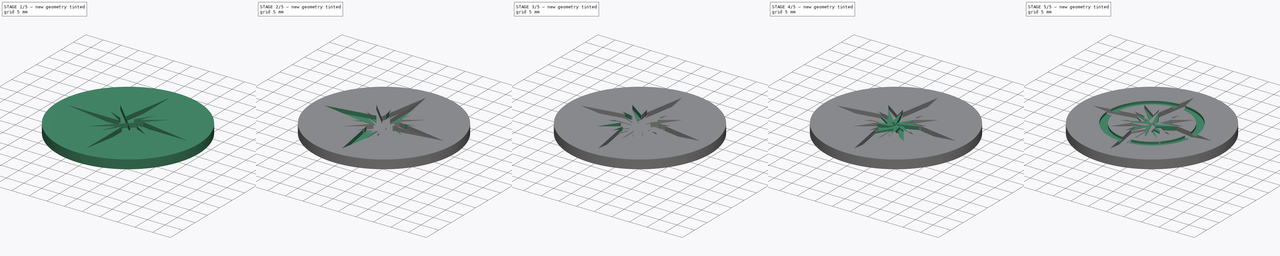
[diagram: build sequence overview — one tinted view per stage of 5, left to right]
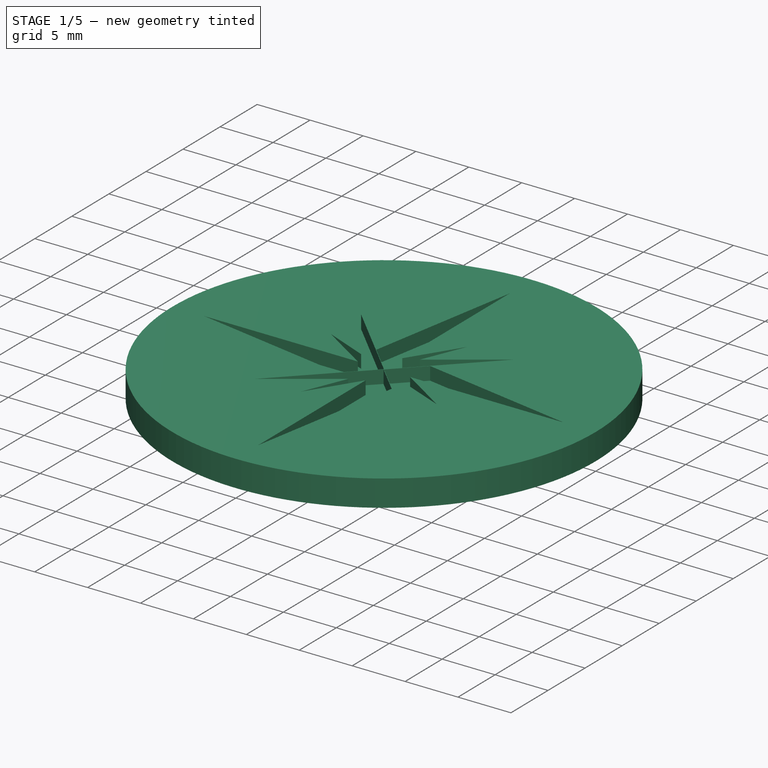
[diagram: stage 1 of 5 — iso view after this stage's code; geometry added in this stage tinted green]
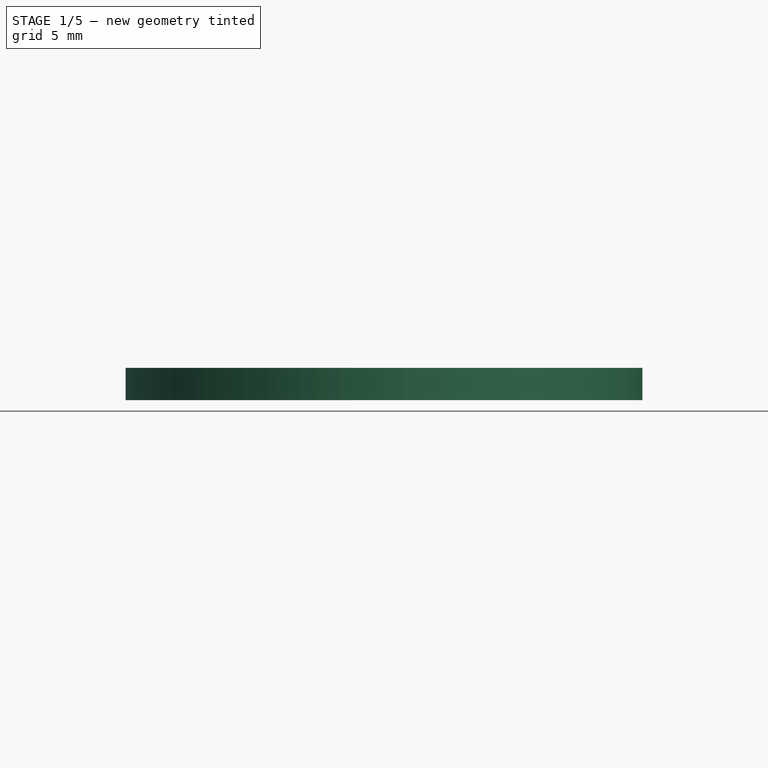
[diagram: stage 1 of 5 — front view after this stage's code; geometry added in this stage tinted green]
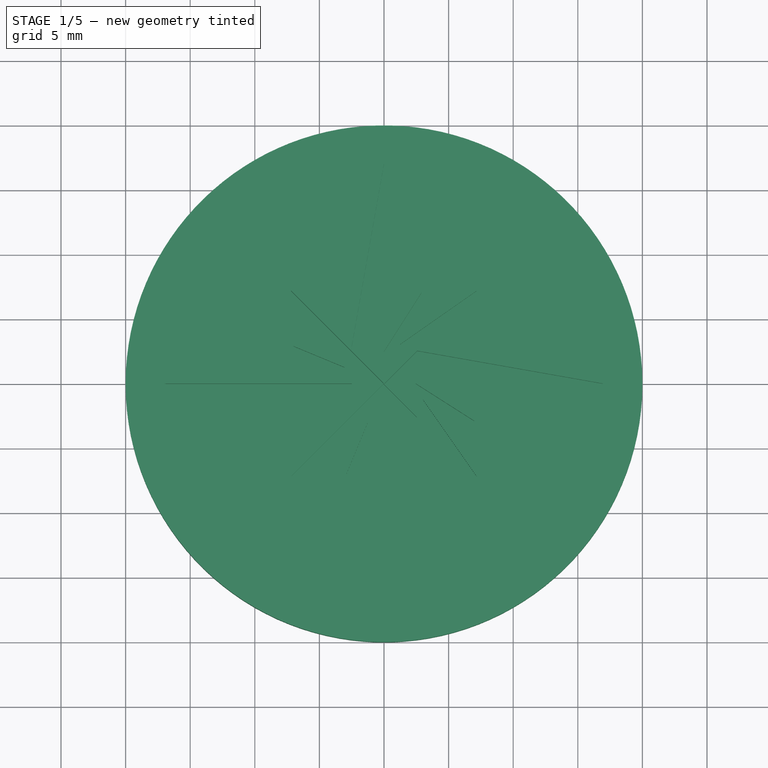
[diagram: stage 1 of 5 — top view after this stage's code; geometry added in this stage tinted green]
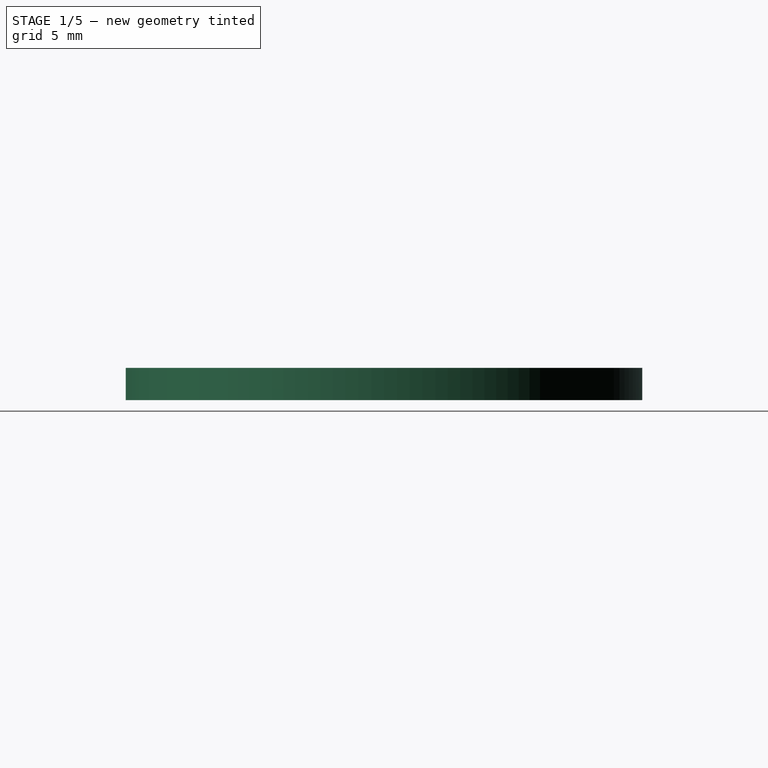
[diagram: stage 1 of 5 — right view after this stage's code; geometry added in this stage tinted green]
FCSTD DOCUMENT  (FreeCAD 0.20R29603 (Git))
Label: compass-rose-74992
License: All rights reserved
LicenseURL: http://en.wikipedia.org/wiki/All_rights_reserved
objects: Part::Feature×34, Sketcher::SketchObject×19, PartDesign::Pocket×11, PartDesign::Pad×7, App::DocumentObjectGroup×6, Part::FeaturePython×4, PartDesign::Plane×2, App::TextDocument×1, Spreadsheet::Sheet×1, App::Part×1, PartDesign::Body×1
note: 96 computed .brp shape members not serialized (recipe doc carries the construction recipe); baked Part::Feature solids carry a one-line shape summary decoded from their .brp

FEATURE [App::TextDocument] Text_document  label="Text document"
  Text = https://commons.wikimedia.org/wiki/File:Kopimi_k.svg
FEATURE [Spreadsheet::Sheet] Spreadsheet
  cells = A2=Vector X center; B2=svec_x; C2(dim_svec_x)==dim_vec_x * dim_svg_scale; A3=Vector Y center; B3=svec_y; C3(dim_svec_y)==dim_vec_y * dim_svg_scale; A4=Circle radius; B4=circle_r; C4(dim_circle_r)==20 mm; A5=Coin height; B5=coin_h; C5(dim_coin_h)==2.5 mm; D5==2.5 mm; A6=Engrave depth; B6=engrave_h; C6(dim_engrave_h)==dim_coin_h / 2; D6==1.25 mm; A7=SVG scale; B7=svg_scale; C7(dim_svg_scale)=0.3; A8=Vector X center; B8=vec_x; C8(dim_vec_x)==-56.63 mm; D8==dim_vec_x * dim_svg_scale; A9=Vector Y center; B9=vec_y; C9(dim_vec_y)==56.63 mm; D9==dim_vec_y * dim_svg_scale; A10=Star 1 engrave depth; B10=s1_h1; C10(dim_s1_h1)==dim_engrave_h; A11=Star 1 engrave depth 2; B11=s1_h2; C11(dim_s1_h2)==dim_engrave_h * 7 / 8; C12(dim_s2_h1)==dim_engrave_h * 0.75; C13(dim_s2_h2)==dim_engrave_h * 5 / 8; C14(dim_s3_h1)==dim_engrave_h * 0.5; C15(dim_s3_h2)==dim_engrave_h * 3 / 8; C16(dim_s4_h1)==dim_engrave_h * 0.25; A17=Star 4 engrage depth 2; C17(dim_s4_h2)==dim_engrave_h / 8; A18=Star 4 rise 2; B18=s4_r2; C18(dim_s4_r2)==dim_engrave_h - dim_s4_h2; C19(dim_s4_r1)==dim_engrave_h - dim_s4_h1; C20(dim_s3_r2)==dim_engrave_h - dim_s3_h2; C21(dim_s3_r1)==dim_engrave_h - dim_s3_h1; C22(dim_s2_r2)==dim_engrave_h - dim_s2_h2; C23(dim_s2_r1)==dim_engrave_h - dim_s2_h1
FEATURE [PartDesign::Plane] DatumPlane  label="BaseXYDatumPlane"
  Length = 60
  MapMode = 5
  ResizeMode = 0
  Support = -> [XY_Plane]
  Width = 60
FEATURE [Sketcher::SketchObject] Sketch001  label="CircleSketch"
  FullyConstrained = true
  MapMode = 5
  Support = -> [DatumPlane]
  expr: Constraints[1] = Spreadsheet.dim_circle_r
  sketch-geometry (1):
    g0: Circle CenterX=0 CenterY=0 CenterZ=0 NormalX=0 NormalY=0 NormalZ=1 AngleXU=0 Radius=20
  constraints (2):
    c: Coincident(g0,g-1)
    c: Radius(g0) = 20
FEATURE [PartDesign::Pad] Pad  label="CirclePad"
  Direction = (0,0,1)
  Length = 2.5
  Length2 = 10
  Profile = -> Sketch001
  ReferenceAxis = -> Sketch001 [N_Axis]
  Reversed = true
  Type = 0
  expr: Length = Spreadsheet.dim_coin_h
FEATURE [Part::Feature] path4489_0
  shape: bbox 13.23 x 24.91 x 2e-07 mm, 1 faces, 0 solids (baked)
FEATURE [Part::Feature] path4489_4_1
  shape: bbox 13.23 x 24.91 x 2e-07 mm, 1 faces, 0 solids (baked)
FEATURE [Part::Feature] path4489_9_8
  shape: bbox 13.23 x 24.91 x 2e-07 mm, 1 faces, 0 solids (baked)
FEATURE [Part::Feature] path4489_4_0_5
  shape: bbox 13.23 x 24.91 x 2e-07 mm, 1 faces, 0 solids (baked)
FEATURE [Part::Feature] path4489_8_3
  shape: bbox 24.91 x 13.23 x 2e-07 mm, 1 faces, 0 solids (baked)
FEATURE [Part::Feature] path4489_4_00_8
  shape: bbox 24.91 x 13.23 x 2e-07 mm, 1 faces, 0 solids (baked)
FEATURE [Part::Feature] path4489_9_3_3
  shape: bbox 24.91 x 13.23 x 2e-07 mm, 1 faces, 0 solids (baked)
FEATURE [Part::Feature] path4489_4_0_2_2
  shape: bbox 24.91 x 13.23 x 2e-07 mm, 1 faces, 0 solids (baked)
FEATURE [App::DocumentObjectGroup] Group002  label="Star4Group"
  Group = -> [path4489_0,path4489_4_1,path4489_9_8,path4489_4_0_5,path4489_8_3,path4489_4_00_8,path4489_9_3_3,path4489_4_0_2_2]
FEATURE [Part::Feature] path4489_0_8
  shape: bbox 24.91 x 13.23 x 2e-07 mm, 1 faces, 0 solids (baked)
FEATURE [Part::Feature] path4489_4_1_9
  shape: bbox 24.91 x 13.23 x 2e-07 mm, 1 faces, 0 solids (baked)
FEATURE [Part::Feature] path4489_9_8_2
  shape: bbox 24.91 x 13.23 x 2e-07 mm, 1 faces, 0 solids (baked)
FEATURE [Part::Feature] path4489_4_0_5_2
  shape: bbox 24.91 x 13.23 x 2e-07 mm, 1 faces, 0 solids (baked)
FEATURE [Part::Feature] path4489_8_3_1
  shape: bbox 13.23 x 24.91 x 2e-07 mm, 1 faces, 0 solids (baked)
FEATURE [Part::Feature] path4489_4_00_8_9
  shape: bbox 13.23 x 24.91 x 2e-07 mm, 1 faces, 0 solids (baked)
FEATURE [Part::Feature] path4489_9_3_3_3
  shape: bbox 13.23 x 24.91 x 2e-07 mm, 1 faces, 0 solids (baked)
FEATURE [Part::Feature] path4489_4_0_2_2_5
  shape: bbox 13.23 x 24.91 x 2e-07 mm, 1 faces, 0 solids (baked)
FEATURE [Part::Feature] path4688_3
  shape: bbox 91.92 x 91.92 x 2e-07 mm, 1 faces, 0 solids (baked)
FEATURE [Part::Feature] path4688_3001
  shape: bbox 75.92 x 75.92 x 2e-07 mm, 1 faces, 0 solids (baked)
FEATURE [App::DocumentObjectGroup] Group001  label="CircleGroup"
  Group = -> [path4688_3,path4688_3001]
FEATURE [Part::Feature] path4489_6
  shape: bbox 23.94 x 23.94 x 2e-07 mm, 1 faces, 0 solids (baked)
FEATURE [Part::Feature] path4489_4_9
  shape: bbox 23.94 x 23.94 x 2e-07 mm, 1 faces, 0 solids (baked)
FEATURE [Part::Feature] path4489_9_2
  shape: bbox 23.94 x 23.94 x 2e-07 mm, 1 faces, 0 solids (baked)
FEATURE [Part::Feature] path4489_4_0_26
  shape: bbox 23.94 x 23.94 x 2e-07 mm, 1 faces, 0 solids (baked)
FEATURE [Part::Feature] path4489_8_0
  shape: bbox 23.94 x 23.94 x 2e-07 mm, 1 faces, 0 solids (baked)
FEATURE [Part::Feature] path4489_4_00_4
  shape: bbox 23.94 x 23.94 x 2e-07 mm, 1 faces, 0 solids (baked)
FEATURE [Part::Feature] path4489_9_3_0
  shape: bbox 23.94 x 23.94 x 2e-07 mm, 1 faces, 0 solids (baked)
FEATURE [Part::Feature] path4489_4_0_2_6
  shape: bbox 23.94 x 23.94 x 2e-07 mm, 1 faces, 0 solids (baked)
FEATURE [Part::Feature] path4489
  shape: bbox 8.467 x 56.44 x 2e-07 mm, 1 faces, 0 solids (baked)
FEATURE [Part::Feature] path4489_4
  shape: bbox 8.467 x 56.44 x 2e-07 mm, 1 faces, 0 solids (baked)
FEATURE [Part::Feature] path4489_9
  shape: bbox 8.467 x 56.44 x 2e-07 mm, 1 faces, 0 solids (baked)
FEATURE [Part::Feature] path4489_4_0
  shape: bbox 8.467 x 56.44 x 2e-07 mm, 1 faces, 0 solids (baked)
FEATURE [Part::Feature] path4489_8
  shape: bbox 56.44 x 8.467 x 2e-07 mm, 1 faces, 0 solids (baked)
FEATURE [Part::Feature] path4489_4_00
  shape: bbox 56.44 x 8.467 x 2e-07 mm, 1 faces, 0 solids (baked)
FEATURE [Part::Feature] path4489_9_3
  shape: bbox 56.44 x 8.467 x 2e-07 mm, 1 faces, 0 solids (baked)
FEATURE [Part::Feature] path4489_4_0_2
  shape: bbox 56.44 x 8.467 x 2e-07 mm, 1 faces, 0 solids (baked)
FEATURE [App::DocumentObjectGroup] Group  label="Star1Group"
  Group = -> [path4489,path4489_4,path4489_9,path4489_4_0,path4489_8,path4489_4_00,path4489_9_3,path4489_4_0_2]
FEATURE [App::DocumentObjectGroup] Group003  label="Star3Group"
  Group = -> [path4489_0_8,path4489_4_1_9,path4489_9_8_2,path4489_4_0_5_2,path4489_8_3_1,path4489_4_00_8_9,path4489_9_3_3_3,path4489_4_0_2_2_5]
FEATURE [App::DocumentObjectGroup] Group004  label="Star2Group"
  Group = -> [path4489_6,path4489_4_9,path4489_9_2,path4489_4_0_26,path4489_8_0,path4489_4_00_4,path4489_9_3_0,path4489_4_0_2_6]
FEATURE [Sketcher::SketchObject] Sketch  label="Star11Sketch"
  FullyConstrained = false
  MapMode = 5
  Support = -> [DatumPlane]
  sketch-geometry (12):
    g0: BSplineCurve PolesCount=2 KnotsCount=2 Degree=1 IsPeriodic=0
    g1: BSplineCurve PolesCount=2 KnotsCount=2 Degree=1 IsPeriodic=0
    g2: BSplineCurve PolesCount=2 KnotsCount=2 Degree=1 IsPeriodic=0
    g3: BSplineCurve PolesCount=2 KnotsCount=2 Degree=1 IsPeriodic=0
    g4: BSplineCurve PolesCount=2 KnotsCount=2 Degree=1 IsPeriodic=0
    g5: BSplineCurve PolesCount=2 KnotsCount=2 Degree=1 IsPeriodic=0
    g6: BSplineCurve PolesCount=2 KnotsCount=2 Degree=1 IsPeriodic=0
    g7: BSplineCurve PolesCount=2 KnotsCount=2 Degree=1 IsPeriodic=0
    g8: BSplineCurve PolesCount=2 KnotsCount=2 Degree=1 IsPeriodic=0
    g9: BSplineCurve PolesCount=2 KnotsCount=2 Degree=1 IsPeriodic=0
    g10: BSplineCurve PolesCount=2 KnotsCount=2 Degree=1 IsPeriodic=0
    g11: BSplineCurve PolesCount=2 KnotsCount=2 Degree=1 IsPeriodic=0
  constraints (12):
    c: Coincident(g0,g1)
    c: Coincident(g1,g2)
    c: Coincident(g2,g0)
    c: Coincident(g3,g4)
    c: Coincident(g4,g5)
    c: Coincident(g5,g3)
    c: Coincident(g6,g7)
    c: Coincident(g7,g8)
    c: Coincident(g8,g6)
    c: Coincident(g9,g10)
    c: Coincident(g10,g11)
    c: Coincident(g11,g9)
FEATURE [PartDesign::Pocket] Pocket  label="Star11Pocket"
  BaseFeature = -> Pad
  Direction = (0,0,-1)
  Length = 1.25
  Length2 = 5
  Profile = -> Sketch
  ReferenceAxis = -> Sketch [N_Axis]
  Type = 0
  expr: Length = Spreadsheet.dim_engrave_h
FEATURE [Sketcher::SketchObject] Sketch002
  FullyConstrained = false
  MapMode = 5
  Support = -> [DatumPlane]
  sketch-geometry (12):
    g0: BSplineCurve PolesCount=2 KnotsCount=2 Degree=1 IsPeriodic=0
    g1: BSplineCurve PolesCount=2 KnotsCount=2 Degree=1 IsPeriodic=0
    g2: BSplineCurve PolesCount=2 KnotsCount=2 Degree=1 IsPeriodic=0
    g3: BSplineCurve PolesCount=2 KnotsCount=2 Degree=1 IsPeriodic=0
    g4: BSplineCurve PolesCount=2 KnotsCount=2 Degree=1 IsPeriodic=0
    g5: BSplineCurve PolesCount=2 KnotsCount=2 Degree=1 IsPeriodic=0
    g6: BSplineCurve PolesCount=2 KnotsCount=2 Degree=1 IsPeriodic=0
    g7: BSplineCurve PolesCount=2 KnotsCount=2 Degree=1 IsPeriodic=0
    g8: BSplineCurve PolesCount=2 KnotsCount=2 Degree=1 IsPeriodic=0
    g9: BSplineCurve PolesCount=2 KnotsCount=2 Degree=1 IsPeriodic=0
    g10: BSplineCurve PolesCount=2 KnotsCount=2 Degree=1 IsPeriodic=0
    g11: BSplineCurve PolesCount=2 KnotsCount=2 Degree=1 IsPeriodic=0
  constraints (12):
    c: Coincident(g0,g1)
    c: Coincident(g1,g2)
    c: Coincident(g2,g0)
    c: Coincident(g3,g4)
    c: Coincident(g4,g5)
    c: Coincident(g5,g3)
    c: Coincident(g6,g7)
    c: Coincident(g7,g8)
    c: Coincident(g8,g6)
    c: Coincident(g9,g10)
    c: Coincident(g10,g11)
    c: Coincident(g11,g9)
FEATURE [PartDesign::Pocket] Pocket001  label="Star21Pocket"
  BaseFeature = -> Pocket
  Direction = (0,0,-1)
  Length = 1.25
  Length2 = 5
  Profile = -> Sketch002
  ReferenceAxis = -> Sketch002 [N_Axis]
  Type = 0
  expr: Length = Spreadsheet.dim_engrave_h
FEATURE [Sketcher::SketchObject] Sketch003
  FullyConstrained = false
  MapMode = 5
  Support = -> [DatumPlane]
  sketch-geometry (12):
    g0: BSplineCurve PolesCount=2 KnotsCount=2 Degree=1 IsPeriodic=0
    g1: BSplineCurve PolesCount=2 KnotsCount=2 Degree=1 IsPeriodic=0
    g2: BSplineCurve PolesCount=2 KnotsCount=2 Degree=1 IsPeriodic=0
    g3: BSplineCurve PolesCount=2 KnotsCount=2 Degree=1 IsPeriodic=0
    g4: BSplineCurve PolesCount=2 KnotsCount=2 Degree=1 IsPeriodic=0
    g5: BSplineCurve PolesCount=2 KnotsCount=2 Degree=1 IsPeriodic=0
    g6: BSplineCurve PolesCount=2 KnotsCount=2 Degree=1 IsPeriodic=0
    g7: BSplineCurve PolesCount=2 KnotsCount=2 Degree=1 IsPeriodic=0
    g8: BSplineCurve PolesCount=2 KnotsCount=2 Degree=1 IsPeriodic=0
    g9: BSplineCurve PolesCount=2 KnotsCount=2 Degree=1 IsPeriodic=0
    g10: BSplineCurve PolesCount=2 KnotsCount=2 Degree=1 IsPeriodic=0
    g11: BSplineCurve PolesCount=2 KnotsCount=2 Degree=1 IsPeriodic=0
  constraints (12):
    c: Coincident(g0,g1)
    c: Coincident(g1,g2)
    c: Coincident(g2,g0)
    c: Coincident(g3,g4)
    c: Coincident(g4,g5)
    c: Coincident(g5,g3)
    c: Coincident(g6,g7)
    c: Coincident(g7,g8)
    c: Coincident(g8,g6)
    c: Coincident(g9,g10)
    c: Coincident(g10,g11)
    c: Coincident(g11,g9)
FEATURE [PartDesign::Pocket] Pocket002  label="Star31Pocket"
  BaseFeature = -> Pocket001
  Direction = (0,0,-1)
  Length = 1.25
  Length2 = 5
  Profile = -> Sketch003
  ReferenceAxis = -> Sketch003 [N_Axis]
  Type = 0
  expr: Length = Spreadsheet.dim_engrave_h
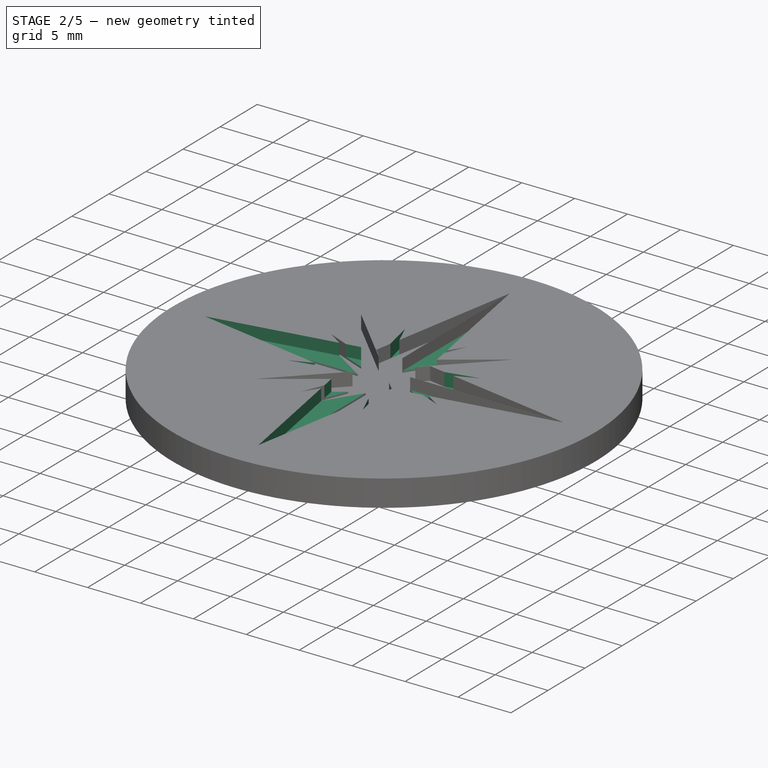
[diagram: stage 2 of 5 — iso view after this stage's code; geometry added in this stage tinted green]
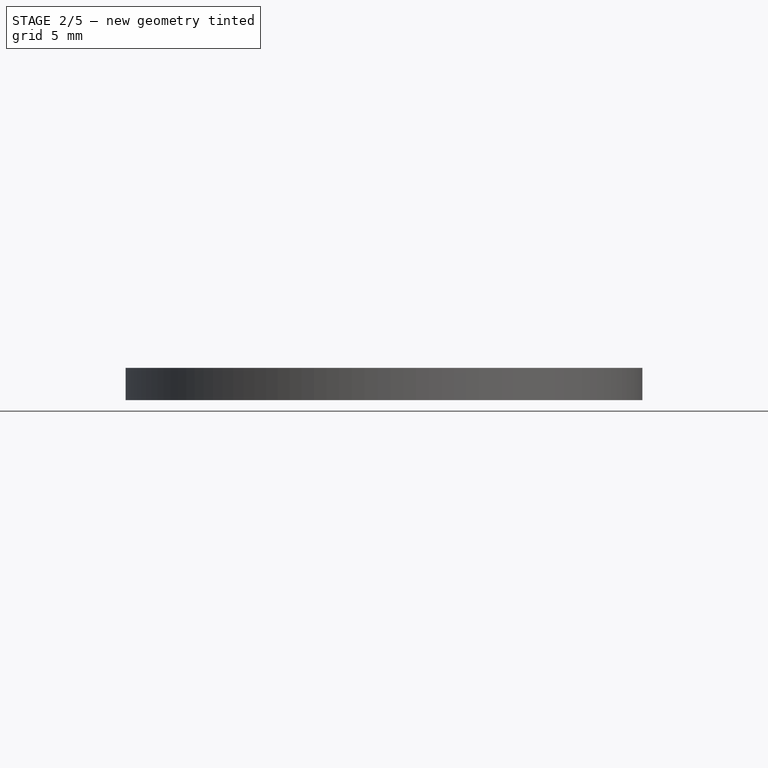
[diagram: stage 2 of 5 — front view after this stage's code; geometry added in this stage tinted green]
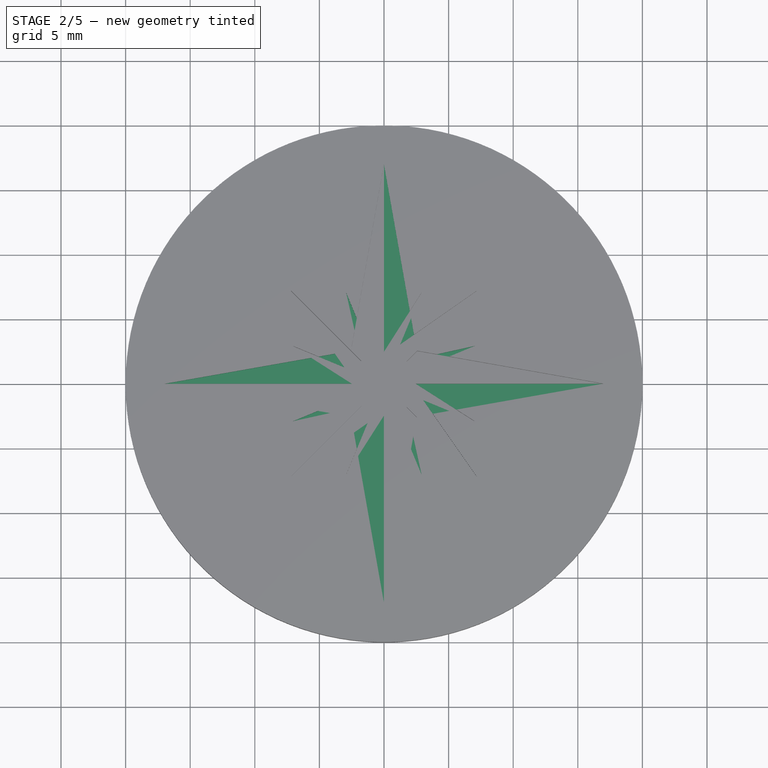
[diagram: stage 2 of 5 — top view after this stage's code; geometry added in this stage tinted green]
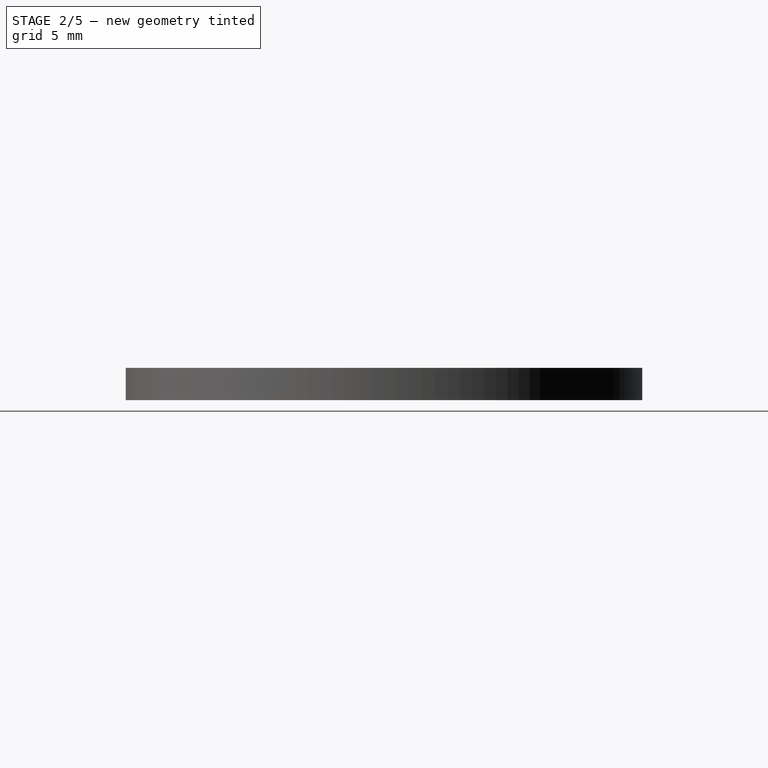
[diagram: stage 2 of 5 — right view after this stage's code; geometry added in this stage tinted green]
FEATURE [Sketcher::SketchObject] Sketch004
  FullyConstrained = false
  MapMode = 5
  Support = -> [DatumPlane]
  sketch-geometry (12):
    g0: BSplineCurve PolesCount=2 KnotsCount=2 Degree=1 IsPeriodic=0
    g1: BSplineCurve PolesCount=2 KnotsCount=2 Degree=1 IsPeriodic=0
    g2: BSplineCurve PolesCount=2 KnotsCount=2 Degree=1 IsPeriodic=0
    g3: BSplineCurve PolesCount=2 KnotsCount=2 Degree=1 IsPeriodic=0
    g4: BSplineCurve PolesCount=2 KnotsCount=2 Degree=1 IsPeriodic=0
    g5: BSplineCurve PolesCount=2 KnotsCount=2 Degree=1 IsPeriodic=0
    g6: BSplineCurve PolesCount=2 KnotsCount=2 Degree=1 IsPeriodic=0
    g7: BSplineCurve PolesCount=2 KnotsCount=2 Degree=1 IsPeriodic=0
    g8: BSplineCurve PolesCount=2 KnotsCount=2 Degree=1 IsPeriodic=0
    g9: BSplineCurve PolesCount=2 KnotsCount=2 Degree=1 IsPeriodic=0
    g10: BSplineCurve PolesCount=2 KnotsCount=2 Degree=1 IsPeriodic=0
    g11: BSplineCurve PolesCount=2 KnotsCount=2 Degree=1 IsPeriodic=0
  constraints (12):
    c: Coincident(g0,g1)
    c: Coincident(g1,g2)
    c: Coincident(g2,g0)
    c: Coincident(g3,g4)
    c: Coincident(g4,g5)
    c: Coincident(g5,g3)
    c: Coincident(g6,g7)
    c: Coincident(g7,g8)
    c: Coincident(g8,g6)
    c: Coincident(g9,g10)
    c: Coincident(g10,g11)
    c: Coincident(g11,g9)
FEATURE [PartDesign::Pocket] Pocket003  label="Star41Pocket"
  BaseFeature = -> Pocket002
  Direction = (0,0,-1)
  Length = 1.25
  Length2 = 5
  Profile = -> Sketch004
  ReferenceAxis = -> Sketch004 [N_Axis]
  Type = 0
  expr: Length = Spreadsheet.dim_engrave_h
FEATURE [Sketcher::SketchObject] Sketch005  label="CenterCircleSketch"
  FullyConstrained = true
  MapMode = 5
  Support = -> [DatumPlane]
  sketch-geometry (1):
    g0: Circle CenterX=0 CenterY=0 CenterZ=0 NormalX=0 NormalY=0 NormalZ=1 AngleXU=0 Radius=1
  constraints (2):
    c: Coincident(g0,g-1)
    c: Radius(g0) = 1
FEATURE [PartDesign::Pocket] Pocket004  label="CenterPocket"
  BaseFeature = -> Pocket003
  Direction = (0,0,-1)
  Length = 1.25
  Length2 = 5
  Profile = -> Sketch005
  ReferenceAxis = -> Sketch005 [N_Axis]
  Type = 0
  expr: Length = Spreadsheet.dim_engrave_h
FEATURE [App::Part] Part  label="SVGPart"
  Group = -> [path4489_4_0,path4489,path4489_9,path4489_4_00,path4489_4,path4489_9_3,path4489_4_0_2,path4489_8,Group,path4489_8_0,path4489_4_00_4,path4489_4_0_2_6,path4489_6,path4489_9_3_0,path4489_4_9,path4489_4_0_26,path4489_9_2,Group004,path4489_4_1_9,path4489_8_3_1,path4489_4_00_8_9,path4489_9_3_3_3,path4489_4_0_5_2,path4489_4_0_2_2_5,path4489_9_8_2,path4489_0_8,Group003,path4489_9_3_3,path4489_4_0_2_2,+10 more]
  Origin = -> Origin001
  Placement = pos=(-56.63,56.63,0) rot=(0,0,1;0rad)
FEATURE [Sketcher::SketchObject] Sketch006  label="CenterReferenceSketch"
  FullyConstrained = true
  MapMode = 5
  Support = -> [DatumPlane]
  expr: Constraints[22] = Spreadsheet.dim_svec_y
  expr: Constraints[27] = Spreadsheet.dim_svec_y
  expr: Constraints[35] = Spreadsheet.dim_svec_y
  expr: Constraints[40] = Spreadsheet.dim_svec_y
  sketch-geometry (25):
    g0: ArcOfCircle CenterX=0 CenterY=0 CenterZ=0 NormalX=0 NormalY=0 NormalZ=1 AngleXU=0 Radius=57 StartAngle=0 EndAngle=1.5708
    g1: ArcOfCircle CenterX=0 CenterY=0 CenterZ=0 NormalX=0 NormalY=0 NormalZ=1 AngleXU=0 Radius=57 StartAngle=1.5708 EndAngle=3.14159
    g2: ArcOfCircle CenterX=0 CenterY=0 CenterZ=0 NormalX=0 NormalY=0 NormalZ=1 AngleXU=0 Radius=57 StartAngle=4.71239 EndAngle=6.28319
    g3: LineSegment StartX=-16.989 StartY=0 StartZ=0 EndX=-57 EndY=0 EndZ=0
    g4: LineSegment StartX=0 StartY=16.989 StartZ=0 EndX=0 EndY=57 EndZ=0
    g5: LineSegment StartX=16.989 StartY=0 StartZ=0 EndX=57 EndY=0 EndZ=0
    g6: LineSegment StartX=0 StartY=-16.989 StartZ=0 EndX=0 EndY=-57 EndZ=0
    g7: LineSegment StartX=0 StartY=0 StartZ=0 EndX=-16.889 EndY=0 EndZ=0
    g8: LineSegment StartX=-16.889 StartY=0 StartZ=0 EndX=-16.989 EndY=0 EndZ=0
    g9: LineSegment StartX=0 StartY=0 StartZ=0 EndX=0 EndY=1 EndZ=0
    g10: LineSegment StartX=0 StartY=0 StartZ=0 EndX=0 EndY=-1 EndZ=0
    g11: LineSegment StartX=0 StartY=-1 StartZ=0 EndX=0 EndY=-16.989 EndZ=0
    g12: LineSegment StartX=0 StartY=0 StartZ=0 EndX=16.889 EndY=0 EndZ=0
    g13: LineSegment StartX=16.889 StartY=0 StartZ=0 EndX=16.989 EndY=0 EndZ=0
    g14: LineSegment StartX=0 StartY=1 StartZ=0 EndX=0 EndY=16.889 EndZ=0
    g15: LineSegment StartX=0 StartY=16.889 StartZ=0 EndX=0 EndY=16.989 EndZ=0
    g16: LineSegment StartX=0 StartY=16.889 StartZ=0 EndX=-0.707107 EndY=0.707107 EndZ=0
    g17: LineSegment StartX=0 StartY=16.889 StartZ=0 EndX=0.707107 EndY=0.707107 EndZ=0
    g18: LineSegment StartX=-0.707107 StartY=0.707107 StartZ=0 EndX=-16.889 EndY=0 EndZ=0
    g19: LineSegment StartX=-16.889 StartY=0 StartZ=0 EndX=-0.707107 EndY=-0.707107 EndZ=0
    g20: LineSegment StartX=0.707107 StartY=0.707107 StartZ=0 EndX=16.889 EndY=-1e-16 EndZ=0
    g21: LineSegment StartX=16.889 StartY=0 StartZ=0 EndX=0.707107 EndY=-0.707107 EndZ=0
    g22: LineSegment StartX=-0.707107 StartY=0.707107 StartZ=0 EndX=0 EndY=0 EndZ=0
    g23: ArcOfCircle CenterX=0 CenterY=0 CenterZ=0 NormalX=0 NormalY=0 NormalZ=1 AngleXU=0 Radius=1 StartAngle=5.49779 EndAngle=10.2102
    g24: LineSegment StartX=-0.707107 StartY=-0.707107 StartZ=0 EndX=0.707107 EndY=-0.707107 EndZ=0
  constraints (67):
    c: Coincident(g9,g-1)
    c: Coincident(g12,g9)
    c: Coincident(g0,g9)
    c: Coincident(g0,g4)
    c: Coincident(g0,g5)
    c: DistanceY(g9,g4) = 57
    c: Coincident(g10,g9)
    c: Coincident(g7,g9)
    c: Coincident(g1,g9)
    c: Coincident(g1,g4)
    c: Coincident(g1,g3)
    c: Coincident(g2,g9)
    c: Coincident(g2,g5)
    c: Coincident(g2,g6)
    c: Coincident(g8,g3)
    c: Horizontal(g3)
    c: Coincident(g15,g4)
    c: Vertical(g4)
    c: Coincident(g13,g5)
    c: Horizontal(g5)
    c: Coincident(g11,g6)
    c: Vertical(g6)
    c: DistanceY(g9,g15) = 16.989
    c: Coincident(g7,g8)
    c: Horizontal(g7)
    c: Horizontal(g8)
    c: DistanceX(g8,g8) = 0.1
    c: DistanceX(g3,g0) = 16.989
    c: Coincident(g9,g14)
    c: Vertical(g9)
    c: Coincident(g10,g11)
    c: Vertical(g10)
    c: Vertical(g11)
    c: Equal(g10,g9)
    c: DistanceY(g9,g9) = 1
    c: DistanceY(g6,g0) = 16.989
    c: Coincident(g12,g13)
    c: Horizontal(g12)
    c: Horizontal(g13)
    c: DistanceX(g13,g13) = 0.1
    c: DistanceX(g0,g5) = 16.989
    c: Coincident(g14,g15)
    c: Vertical(g14)
    c: Vertical(g15)
    c: DistanceY(g15,g15) = 0.1
    c: Coincident(g16,g14)
    c: Coincident(g17,g16)
    c: Coincident(g23,g0)
    c: Coincident(g18,g16)
    c: Coincident(g18,g7)
    c: Coincident(g19,g18)
    c: Coincident(g20,g17)
    c: Coincident(g20,g12)
    c: Coincident(g21,g20)
    c: Equal(g21,g20)
    c: Equal(g18,g19)
    c: Equal(g16,g17)
    c: Coincident(g22,g16)
    c: Coincident(g22,g0)
    c: Angle(g22,g7) = 0.785398
    c: PointOnObject(g9,g23)
    c: PointOnObject(g17,g23)
    c: PointOnObject(g16,g23)
    c: Coincident(g21,g23)
    c: Coincident(g19,g23)
    c: Coincident(g24,g19)
    c: Coincident(g24,g21)
FEATURE [Part::FeaturePython] Clone  label="path4489_010"  # Draft clone (typed FeaturePython)
  AttacherType = Attacher::AttachEngine3D
  Fuse = false
  Objects = -> [path4489_4,path4489_4_0,path4489_4_00,path4489_4_0_2]
  Placement = pos=(-16.989,16.989,0) rot=(0,0,1;0rad)
  Scale = (0.3,0.3,0.3)
  expr: .Placement.Base.x = Spreadsheet.dim_svec_x
  expr: .Placement.Base.y = Spreadsheet.dim_svec_y
FEATURE [Part::FeaturePython] Clone001  label="path4489_4_001"  # Draft clone (typed FeaturePython)
  AttacherType = Attacher::AttachEngine3D
  Fuse = false
  Objects = -> [path4489_4_9,path4489_4_0_26,path4489_4_00_4,path4489_4_0_2_6]
  Placement = pos=(-16.989,16.989,0) rot=(0,0,1;0rad)
  Scale = (0.3,0.3,0.3)
  expr: .Placement.Base.x = Spreadsheet.dim_svec_x
  expr: .Placement.Base.y = Spreadsheet.dim_svec_y
FEATURE [Part::FeaturePython] Clone002  label="path4489_4_1_010"  # Draft clone (typed FeaturePython)
  AttacherType = Attacher::AttachEngine3D
  Fuse = false
  Objects = -> [path4489_4_1_9,path4489_4_0_5_2,path4489_4_00_8_9,path4489_4_0_2_2_5]
  Placement = pos=(-16.989,16.989,0) rot=(0,0,1;0rad)
  Scale = (0.3,0.3,0.3)
  expr: .Placement.Base.x = Spreadsheet.dim_svec_x
  expr: .Placement.Base.y = Spreadsheet.dim_svec_y
FEATURE [Part::FeaturePython] Clone003  label="path4489_4_002"  # Draft clone (typed FeaturePython)
  AttacherType = Attacher::AttachEngine3D
  Fuse = false
  Objects = -> [path4489_4_1,path4489_4_0_5,path4489_4_00_8,path4489_4_0_2_2]
  Placement = pos=(-16.989,16.989,0) rot=(0,0,1;0rad)
  Scale = (0.3,0.3,0.3)
  expr: .Placement.Base.x = Spreadsheet.dim_svec_x
  expr: .Placement.Base.y = Spreadsheet.dim_svec_y
FEATURE [App::DocumentObjectGroup] Group005  label="ResizeGroup"
  Group = -> [Clone,Clone001,Clone002,Clone003]
FEATURE [Sketcher::SketchObject] Sketch007
  FullyConstrained = false
  sketch-geometry (12):
    g0: BSplineCurve PolesCount=2 KnotsCount=2 Degree=1 IsPeriodic=0
    g1: BSplineCurve PolesCount=2 KnotsCount=2 Degree=1 IsPeriodic=0
    g2: BSplineCurve PolesCount=2 KnotsCount=2 Degree=1 IsPeriodic=0
    g3: BSplineCurve PolesCount=2 KnotsCount=2 Degree=1 IsPeriodic=0
    g4: BSplineCurve PolesCount=2 KnotsCount=2 Degree=1 IsPeriodic=0
    g5: BSplineCurve PolesCount=2 KnotsCount=2 Degree=1 IsPeriodic=0
    g6: BSplineCurve PolesCount=2 KnotsCount=2 Degree=1 IsPeriodic=0
    g7: BSplineCurve PolesCount=2 KnotsCount=2 Degree=1 IsPeriodic=0
    g8: BSplineCurve PolesCount=2 KnotsCount=2 Degree=1 IsPeriodic=0
    g9: BSplineCurve PolesCount=2 KnotsCount=2 Degree=1 IsPeriodic=0
    g10: BSplineCurve PolesCount=2 KnotsCount=2 Degree=1 IsPeriodic=0
    g11: BSplineCurve PolesCount=2 KnotsCount=2 Degree=1 IsPeriodic=0
  constraints (12):
    c: Coincident(g0,g1)
    c: Coincident(g1,g2)
    c: Coincident(g2,g0)
    c: Coincident(g3,g4)
    c: Coincident(g4,g5)
    c: Coincident(g5,g3)
    c: Coincident(g6,g7)
    c: Coincident(g7,g8)
    c: Coincident(g8,g6)
    c: Coincident(g9,g10)
    c: Coincident(g10,g11)
    c: Coincident(g11,g9)
FEATURE [Sketcher::SketchObject] Sketch008
  FullyConstrained = false
  sketch-geometry (12):
    g0: BSplineCurve PolesCount=2 KnotsCount=2 Degree=1 IsPeriodic=0
    g1: BSplineCurve PolesCount=2 KnotsCount=2 Degree=1 IsPeriodic=0
    g2: BSplineCurve PolesCount=2 KnotsCount=2 Degree=1 IsPeriodic=0
    g3: BSplineCurve PolesCount=2 KnotsCount=2 Degree=1 IsPeriodic=0
    g4: BSplineCurve PolesCount=2 KnotsCount=2 Degree=1 IsPeriodic=0
    g5: BSplineCurve PolesCount=2 KnotsCount=2 Degree=1 IsPeriodic=0
    g6: BSplineCurve PolesCount=2 KnotsCount=2 Degree=1 IsPeriodic=0
    g7: BSplineCurve PolesCount=2 KnotsCount=2 Degree=1 IsPeriodic=0
    g8: BSplineCurve PolesCount=2 KnotsCount=2 Degree=1 IsPeriodic=0
    g9: BSplineCurve PolesCount=2 KnotsCount=2 Degree=1 IsPeriodic=0
    g10: BSplineCurve PolesCount=2 KnotsCount=2 Degree=1 IsPeriodic=0
    g11: BSplineCurve PolesCount=2 KnotsCount=2 Degree=1 IsPeriodic=0
  constraints (12):
    c: Coincident(g0,g1)
    c: Coincident(g1,g2)
    c: Coincident(g2,g0)
    c: Coincident(g3,g4)
    c: Coincident(g4,g5)
    c: Coincident(g5,g3)
    c: Coincident(g6,g7)
    c: Coincident(g7,g8)
    c: Coincident(g8,g6)
    c: Coincident(g9,g10)
    c: Coincident(g10,g11)
    c: Coincident(g11,g9)
FEATURE [Sketcher::SketchObject] Sketch009
  FullyConstrained = false
  sketch-geometry (12):
    g0: BSplineCurve PolesCount=2 KnotsCount=2 Degree=1 IsPeriodic=0
    g1: BSplineCurve PolesCount=2 KnotsCount=2 Degree=1 IsPeriodic=0
    g2: BSplineCurve PolesCount=2 KnotsCount=2 Degree=1 IsPeriodic=0
    g3: BSplineCurve PolesCount=2 KnotsCount=2 Degree=1 IsPeriodic=0
    g4: BSplineCurve PolesCount=2 KnotsCount=2 Degree=1 IsPeriodic=0
    g5: BSplineCurve PolesCount=2 KnotsCount=2 Degree=1 IsPeriodic=0
    g6: BSplineCurve PolesCount=2 KnotsCount=2 Degree=1 IsPeriodic=0
    g7: BSplineCurve PolesCount=2 KnotsCount=2 Degree=1 IsPeriodic=0
    g8: BSplineCurve PolesCount=2 KnotsCount=2 Degree=1 IsPeriodic=0
    g9: BSplineCurve PolesCount=2 KnotsCount=2 Degree=1 IsPeriodic=0
    g10: BSplineCurve PolesCount=2 KnotsCount=2 Degree=1 IsPeriodic=0
    g11: BSplineCurve PolesCount=2 KnotsCount=2 Degree=1 IsPeriodic=0
  constraints (12):
    c: Coincident(g0,g1)
    c: Coincident(g1,g2)
    c: Coincident(g2,g0)
    c: Coincident(g3,g4)
    c: Coincident(g4,g5)
    c: Coincident(g5,g3)
    c: Coincident(g6,g7)
    c: Coincident(g7,g8)
    c: Coincident(g8,g6)
    c: Coincident(g9,g10)
    c: Coincident(g10,g11)
    c: Coincident(g11,g9)
FEATURE [Sketcher::SketchObject] Sketch010
  FullyConstrained = false
  sketch-geometry (12):
    g0: BSplineCurve PolesCount=2 KnotsCount=2 Degree=1 IsPeriodic=0
    g1: BSplineCurve PolesCount=2 KnotsCount=2 Degree=1 IsPeriodic=0
    g2: BSplineCurve PolesCount=2 KnotsCount=2 Degree=1 IsPeriodic=0
    g3: BSplineCurve PolesCount=2 KnotsCount=2 Degree=1 IsPeriodic=0
    g4: BSplineCurve PolesCount=2 KnotsCount=2 Degree=1 IsPeriodic=0
    g5: BSplineCurve PolesCount=2 KnotsCount=2 Degree=1 IsPeriodic=0
    g6: BSplineCurve PolesCount=2 KnotsCount=2 Degree=1 IsPeriodic=0
    g7: BSplineCurve PolesCount=2 KnotsCount=2 Degree=1 IsPeriodic=0
    g8: BSplineCurve PolesCount=2 KnotsCount=2 Degree=1 IsPeriodic=0
    g9: BSplineCurve PolesCount=2 KnotsCount=2 Degree=1 IsPeriodic=0
    g10: BSplineCurve PolesCount=2 KnotsCount=2 Degree=1 IsPeriodic=0
    g11: BSplineCurve PolesCount=2 KnotsCount=2 Degree=1 IsPeriodic=0
  constraints (12):
    c: Coincident(g0,g1)
    c: Coincident(g1,g2)
    c: Coincident(g2,g0)
    c: Coincident(g3,g4)
    c: Coincident(g4,g5)
    c: Coincident(g5,g3)
    c: Coincident(g6,g7)
    c: Coincident(g7,g8)
    c: Coincident(g8,g6)
    c: Coincident(g9,g10)
    c: Coincident(g10,g11)
    c: Coincident(g11,g9)
FEATURE [PartDesign::Pocket] Pocket005
  BaseFeature = -> Pocket004
  Direction = (0,0,-1)
  Length = 1.09375
  Length2 = 5
  Profile = -> Sketch007
  ReferenceAxis = -> Sketch007 [N_Axis]
  Type = 0
  expr: Length = Spreadsheet.dim_s1_h2
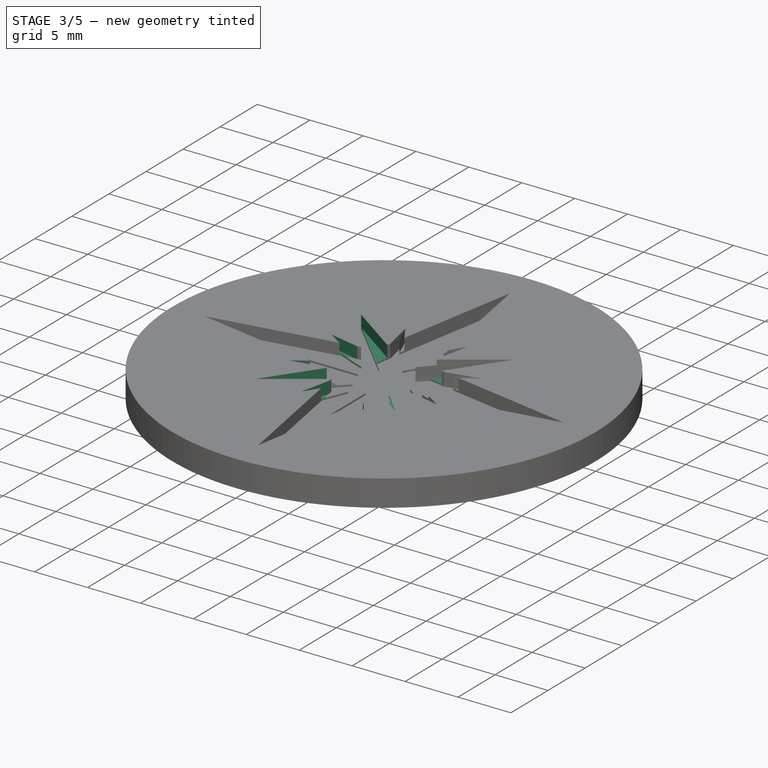
[diagram: stage 3 of 5 — iso view after this stage's code; geometry added in this stage tinted green]
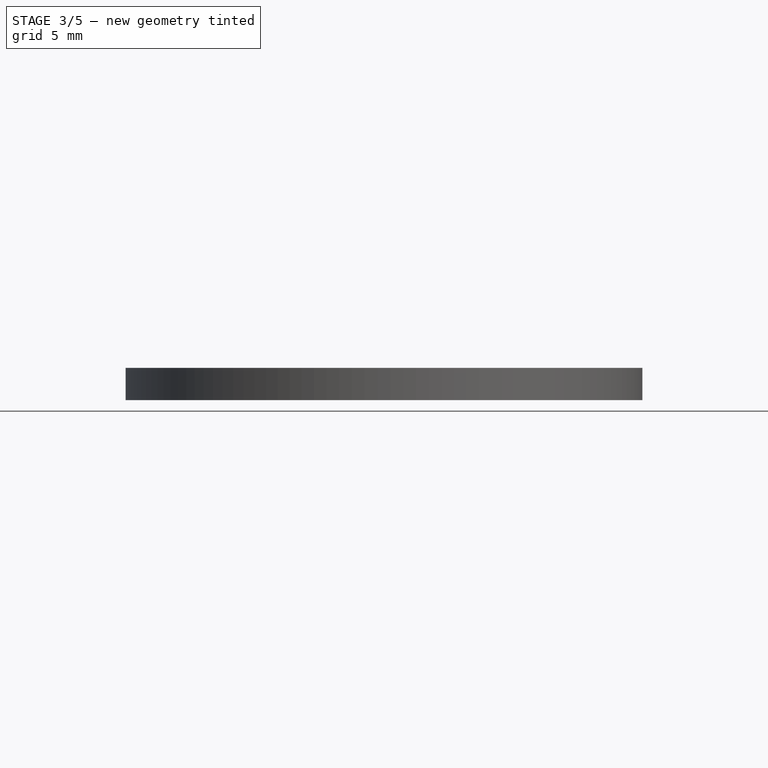
[diagram: stage 3 of 5 — front view after this stage's code; geometry added in this stage tinted green]
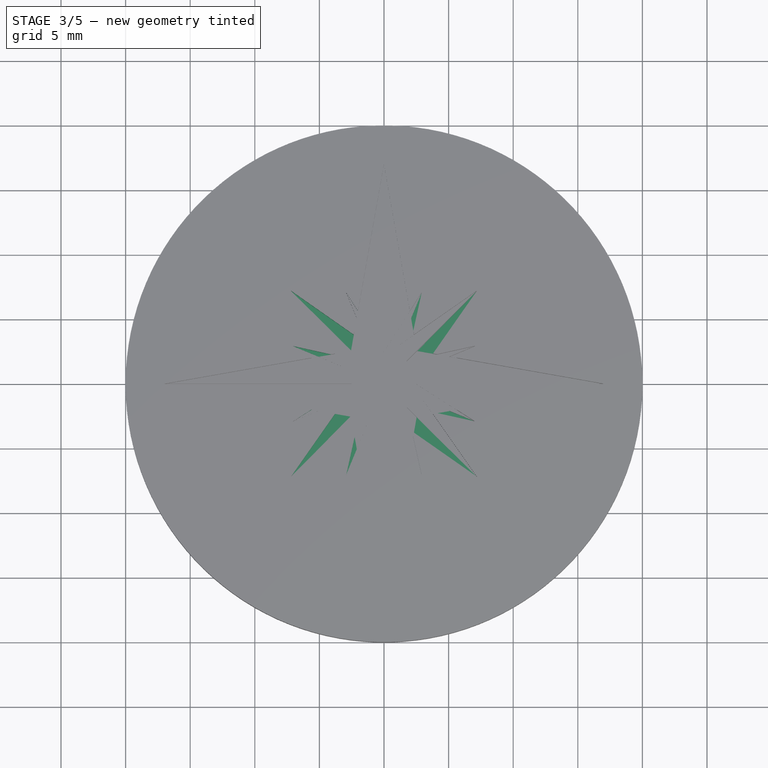
[diagram: stage 3 of 5 — top view after this stage's code; geometry added in this stage tinted green]
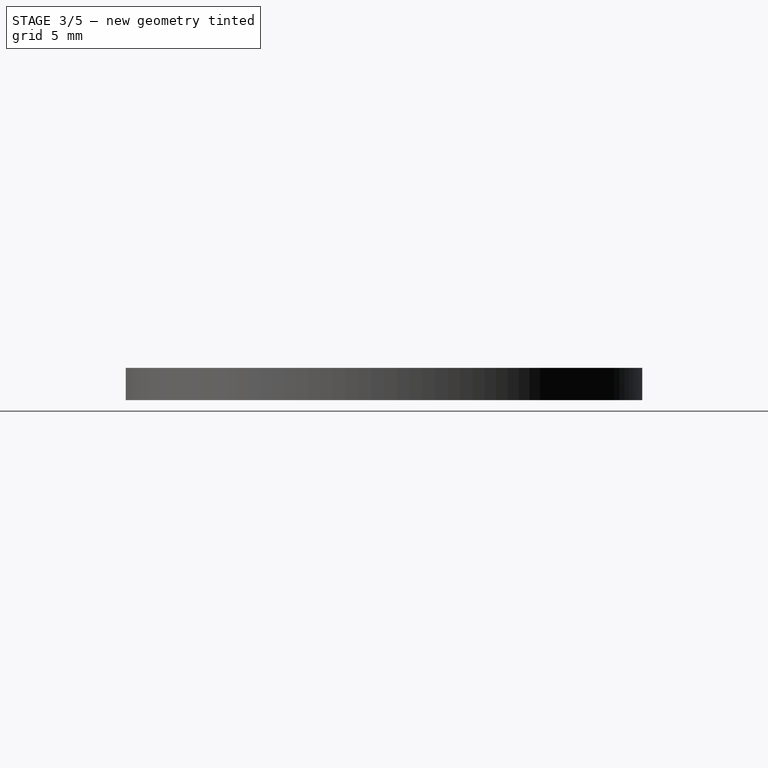
[diagram: stage 3 of 5 — right view after this stage's code; geometry added in this stage tinted green]
FEATURE [PartDesign::Pocket] Pocket006
  BaseFeature = -> Pocket005
  Direction = (0,0,-1)
  Length = 1.09375
  Length2 = 5
  Profile = -> Sketch008
  ReferenceAxis = -> Sketch008 [N_Axis]
  Type = 0
  expr: Length = Spreadsheet.dim_s1_h2
FEATURE [PartDesign::Pocket] Pocket007
  BaseFeature = -> Pocket006
  Direction = (0,0,-1)
  Length = 1.09375
  Length2 = 5
  Profile = -> Sketch009
  ReferenceAxis = -> Sketch009 [N_Axis]
  Type = 0
  expr: Length = Spreadsheet.dim_s1_h2
FEATURE [PartDesign::Pocket] Pocket008
  BaseFeature = -> Pocket007
  Direction = (0,0,-1)
  Length = 1.09375
  Length2 = 5
  Profile = -> Sketch010
  ReferenceAxis = -> Sketch010 [N_Axis]
  Type = 0
  expr: Length = Spreadsheet.dim_s1_h2
FEATURE [PartDesign::Plane] DatumPlane001  label="EngraveXYDatumPlane"
  AttachmentOffset = pos=(0,0,-1.25) rot=(0,0,1;0rad)
  Length = 60
  MapMode = 5
  Placement = pos=(0,0,-1.25) rot=(0,0,1;0rad)
  ResizeMode = 0
  Support = -> [XY_Plane]
  Width = 60
  expr: .AttachmentOffset.Base.z = -1 * Spreadsheet.dim_engrave_h
FEATURE [Sketcher::SketchObject] Sketch011  label="Star2Part1Sketch"
  FullyConstrained = false
  MapMode = 5
  Placement = pos=(0,0,-1.25) rot=(0,0,1;0rad)
  Support = -> [DatumPlane001]
  sketch-geometry (12):
    g0: BSplineCurve PolesCount=2 KnotsCount=2 Degree=1 IsPeriodic=0
    g1: BSplineCurve PolesCount=2 KnotsCount=2 Degree=1 IsPeriodic=0
    g2: BSplineCurve PolesCount=2 KnotsCount=2 Degree=1 IsPeriodic=0
    g3: BSplineCurve PolesCount=2 KnotsCount=2 Degree=1 IsPeriodic=0
    g4: BSplineCurve PolesCount=2 KnotsCount=2 Degree=1 IsPeriodic=0
    g5: BSplineCurve PolesCount=2 KnotsCount=2 Degree=1 IsPeriodic=0
    g6: BSplineCurve PolesCount=2 KnotsCount=2 Degree=1 IsPeriodic=0
    g7: BSplineCurve PolesCount=2 KnotsCount=2 Degree=1 IsPeriodic=0
    g8: BSplineCurve PolesCount=2 KnotsCount=2 Degree=1 IsPeriodic=0
    g9: BSplineCurve PolesCount=2 KnotsCount=2 Degree=1 IsPeriodic=0
    g10: BSplineCurve PolesCount=2 KnotsCount=2 Degree=1 IsPeriodic=0
    g11: BSplineCurve PolesCount=2 KnotsCount=2 Degree=1 IsPeriodic=0
  constraints (12):
    c: Coincident(g0,g1)
    c: Coincident(g1,g2)
    c: Coincident(g2,g0)
    c: Coincident(g3,g4)
    c: Coincident(g4,g5)
    c: Coincident(g5,g3)
    c: Coincident(g6,g7)
    c: Coincident(g7,g8)
    c: Coincident(g8,g6)
    c: Coincident(g9,g10)
    c: Coincident(g10,g11)
    c: Coincident(g11,g9)
FEATURE [PartDesign::Pocket] Pocket009
  BaseFeature = -> Pocket008
  Direction = (0,0,-1)
  Length = 1.09375
  Length2 = 5
  Profile = -> Sketch006
  ReferenceAxis = -> Sketch006 [N_Axis]
  Type = 0
  expr: Length = Spreadsheet.dim_s1_h2
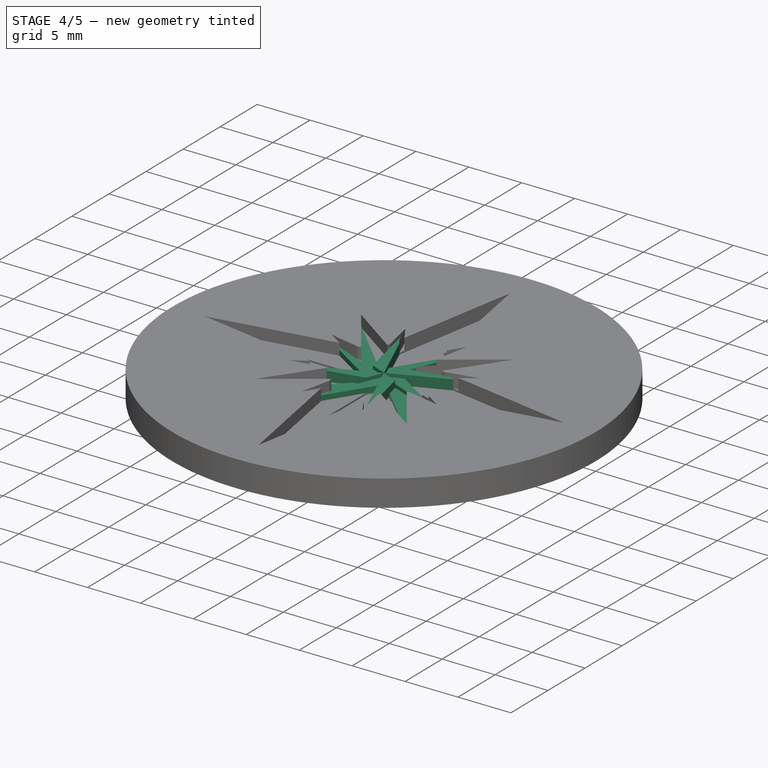
[diagram: stage 4 of 5 — iso view after this stage's code; geometry added in this stage tinted green]
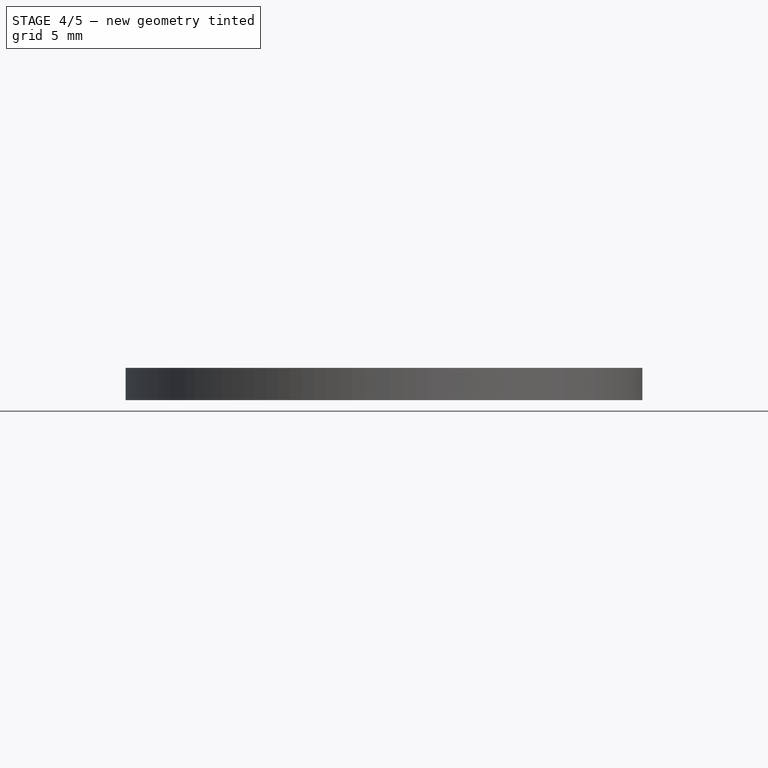
[diagram: stage 4 of 5 — front view after this stage's code; geometry added in this stage tinted green]
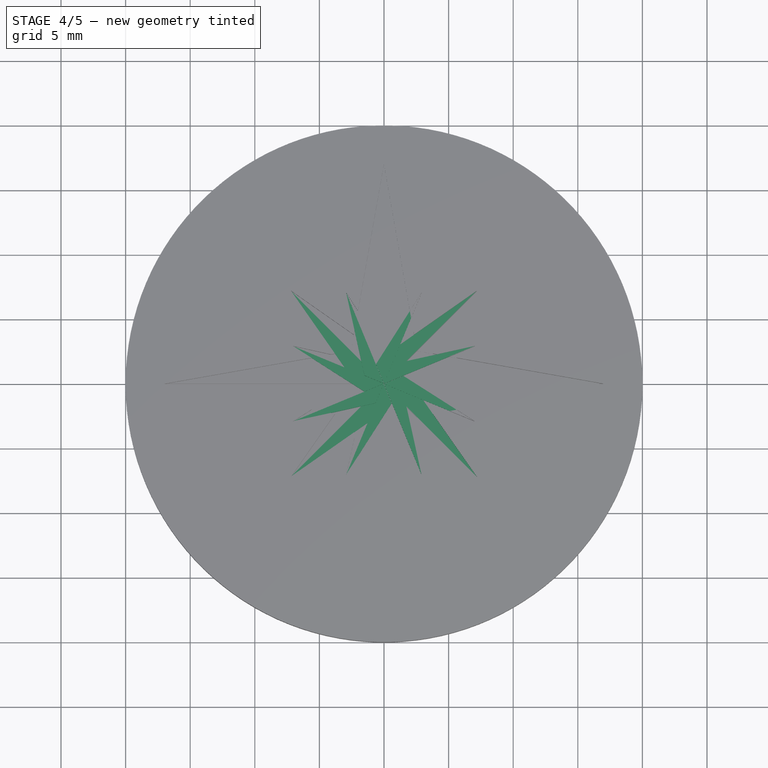
[diagram: stage 4 of 5 — top view after this stage's code; geometry added in this stage tinted green]
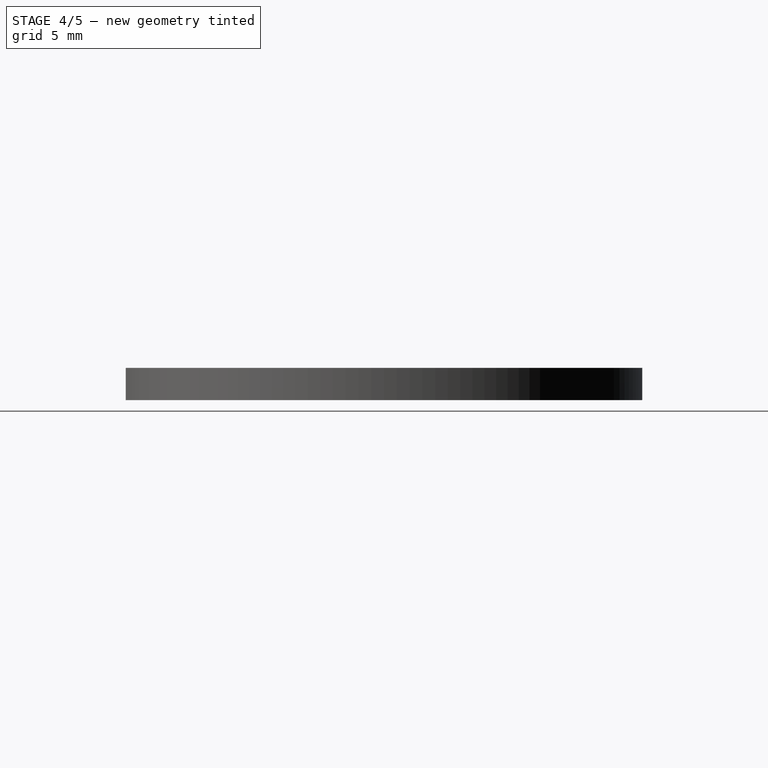
[diagram: stage 4 of 5 — right view after this stage's code; geometry added in this stage tinted green]
FEATURE [PartDesign::Pad] Pad001  label="Star21Pad"
  BaseFeature = -> Pocket009
  Direction = (0,0,1)
  Length = 0.3125
  Length2 = 10
  Profile = -> Sketch011
  ReferenceAxis = -> Sketch011 [N_Axis]
  Type = 0
  expr: Length = Spreadsheet.dim_s2_r1
FEATURE [Sketcher::SketchObject] Sketch012
  FullyConstrained = false
  MapMode = 5
  Placement = pos=(0,0,-1.25) rot=(0,0,1;0rad)
  Support = -> [DatumPlane001]
  sketch-geometry (12):
    g0: BSplineCurve PolesCount=2 KnotsCount=2 Degree=1 IsPeriodic=0
    g1: BSplineCurve PolesCount=2 KnotsCount=2 Degree=1 IsPeriodic=0
    g2: BSplineCurve PolesCount=2 KnotsCount=2 Degree=1 IsPeriodic=0
    g3: BSplineCurve PolesCount=2 KnotsCount=2 Degree=1 IsPeriodic=0
    g4: BSplineCurve PolesCount=2 KnotsCount=2 Degree=1 IsPeriodic=0
    g5: BSplineCurve PolesCount=2 KnotsCount=2 Degree=1 IsPeriodic=0
    g6: BSplineCurve PolesCount=2 KnotsCount=2 Degree=1 IsPeriodic=0
    g7: BSplineCurve PolesCount=2 KnotsCount=2 Degree=1 IsPeriodic=0
    g8: BSplineCurve PolesCount=2 KnotsCount=2 Degree=1 IsPeriodic=0
    g9: BSplineCurve PolesCount=2 KnotsCount=2 Degree=1 IsPeriodic=0
    g10: BSplineCurve PolesCount=2 KnotsCount=2 Degree=1 IsPeriodic=0
    g11: BSplineCurve PolesCount=2 KnotsCount=2 Degree=1 IsPeriodic=0
  constraints (12):
    c: Coincident(g0,g1)
    c: Coincident(g1,g2)
    c: Coincident(g2,g0)
    c: Coincident(g3,g4)
    c: Coincident(g4,g5)
    c: Coincident(g5,g3)
    c: Coincident(g6,g7)
    c: Coincident(g7,g8)
    c: Coincident(g8,g6)
    c: Coincident(g9,g10)
    c: Coincident(g10,g11)
    c: Coincident(g11,g9)
FEATURE [Sketcher::SketchObject] Sketch013
  FullyConstrained = false
  MapMode = 5
  Placement = pos=(0,0,-1.25) rot=(0,0,1;0rad)
  Support = -> [DatumPlane001]
  sketch-geometry (12):
    g0: BSplineCurve PolesCount=2 KnotsCount=2 Degree=1 IsPeriodic=0
    g1: BSplineCurve PolesCount=2 KnotsCount=2 Degree=1 IsPeriodic=0
    g2: BSplineCurve PolesCount=2 KnotsCount=2 Degree=1 IsPeriodic=0
    g3: BSplineCurve PolesCount=2 KnotsCount=2 Degree=1 IsPeriodic=0
    g4: BSplineCurve PolesCount=2 KnotsCount=2 Degree=1 IsPeriodic=0
    g5: BSplineCurve PolesCount=2 KnotsCount=2 Degree=1 IsPeriodic=0
    g6: BSplineCurve PolesCount=2 KnotsCount=2 Degree=1 IsPeriodic=0
    g7: BSplineCurve PolesCount=2 KnotsCount=2 Degree=1 IsPeriodic=0
    g8: BSplineCurve PolesCount=2 KnotsCount=2 Degree=1 IsPeriodic=0
    g9: BSplineCurve PolesCount=2 KnotsCount=2 Degree=1 IsPeriodic=0
    g10: BSplineCurve PolesCount=2 KnotsCount=2 Degree=1 IsPeriodic=0
    g11: BSplineCurve PolesCount=2 KnotsCount=2 Degree=1 IsPeriodic=0
  constraints (12):
    c: Coincident(g0,g1)
    c: Coincident(g1,g2)
    c: Coincident(g2,g0)
    c: Coincident(g3,g4)
    c: Coincident(g4,g5)
    c: Coincident(g5,g3)
    c: Coincident(g6,g7)
    c: Coincident(g7,g8)
    c: Coincident(g8,g6)
    c: Coincident(g9,g10)
    c: Coincident(g10,g11)
    c: Coincident(g11,g9)
FEATURE [PartDesign::Pad] Pad002  label="Star31Pad"
  BaseFeature = -> Pad001
  Direction = (0,0,1)
  Length = 0.625
  Length2 = 10
  Profile = -> Sketch012
  ReferenceAxis = -> Sketch012 [N_Axis]
  Type = 0
  expr: Length = Spreadsheet.dim_s3_r1
FEATURE [PartDesign::Pad] Pad003
  BaseFeature = -> Pad002
  Direction = (0,0,1)
  Length = 0.9375
  Length2 = 10
  Profile = -> Sketch013
  ReferenceAxis = -> Sketch013 [N_Axis]
  Type = 0
  expr: Length = Spreadsheet.dim_s4_r1
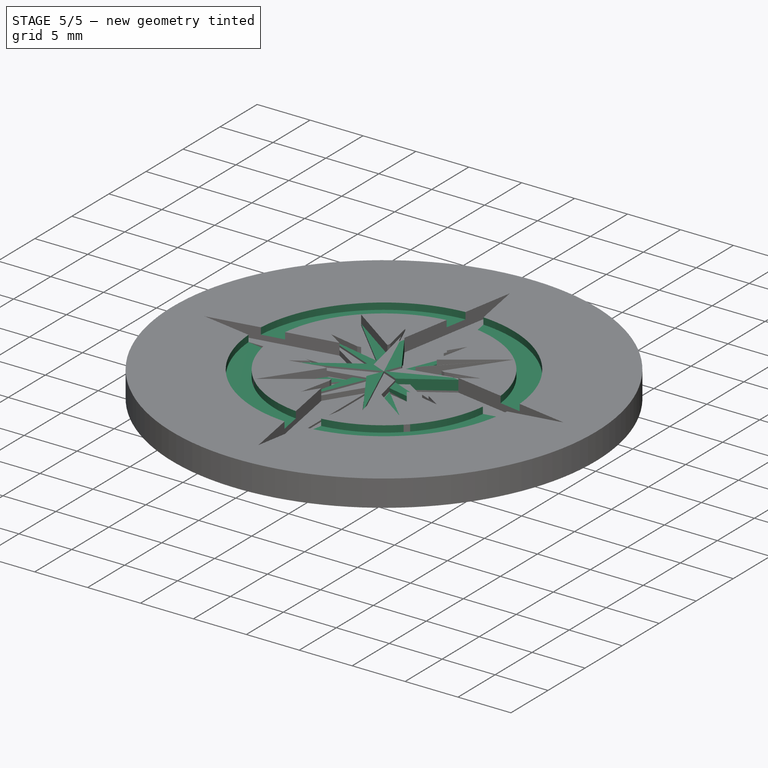
[diagram: stage 5 of 5 — iso view after this stage's code; geometry added in this stage tinted green]
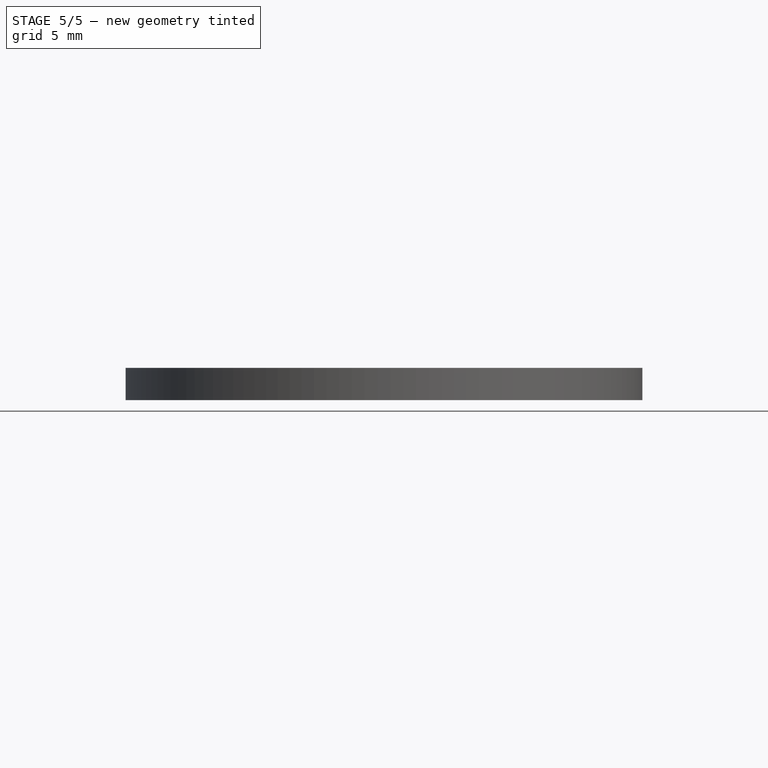
[diagram: stage 5 of 5 — front view after this stage's code; geometry added in this stage tinted green]
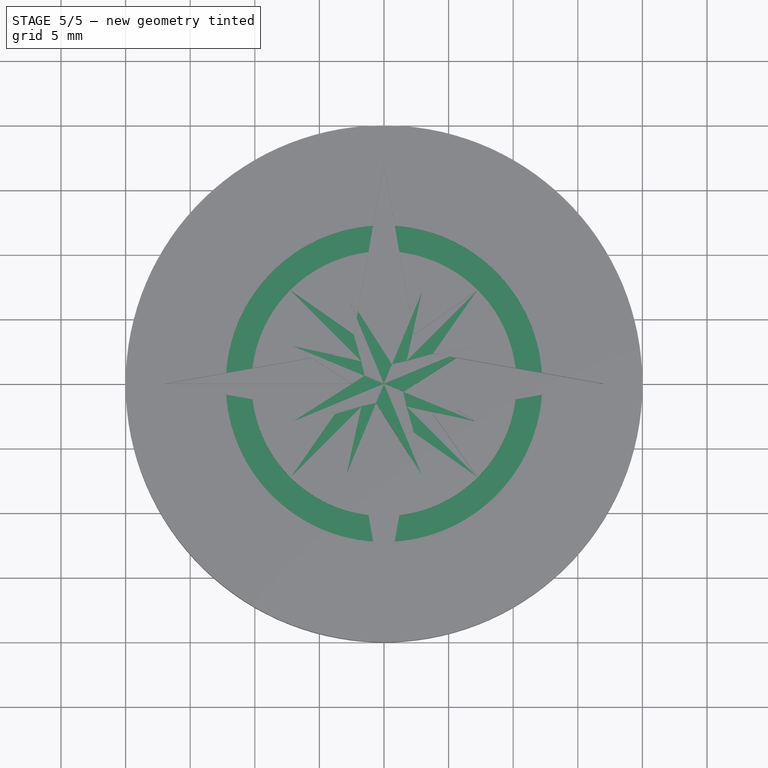
[diagram: stage 5 of 5 — top view after this stage's code; geometry added in this stage tinted green]
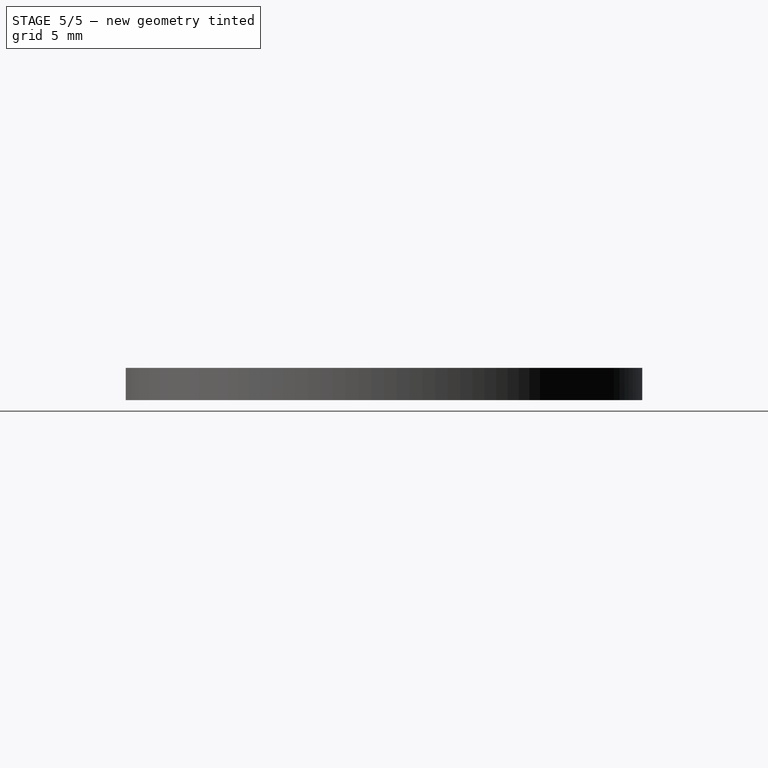
[diagram: stage 5 of 5 — right view after this stage's code; geometry added in this stage tinted green]
FEATURE [Sketcher::SketchObject] Sketch014
  FullyConstrained = false
  MapMode = 5
  Placement = pos=(0,0,-1.25) rot=(0,0,1;0rad)
  Support = -> [DatumPlane001]
  sketch-geometry (12):
    g0: BSplineCurve PolesCount=2 KnotsCount=2 Degree=1 IsPeriodic=0
    g1: BSplineCurve PolesCount=2 KnotsCount=2 Degree=1 IsPeriodic=0
    g2: BSplineCurve PolesCount=2 KnotsCount=2 Degree=1 IsPeriodic=0
    g3: BSplineCurve PolesCount=2 KnotsCount=2 Degree=1 IsPeriodic=0
    g4: BSplineCurve PolesCount=2 KnotsCount=2 Degree=1 IsPeriodic=0
    g5: BSplineCurve PolesCount=2 KnotsCount=2 Degree=1 IsPeriodic=0
    g6: BSplineCurve PolesCount=2 KnotsCount=2 Degree=1 IsPeriodic=0
    g7: BSplineCurve PolesCount=2 KnotsCount=2 Degree=1 IsPeriodic=0
    g8: BSplineCurve PolesCount=2 KnotsCount=2 Degree=1 IsPeriodic=0
    g9: BSplineCurve PolesCount=2 KnotsCount=2 Degree=1 IsPeriodic=0
    g10: BSplineCurve PolesCount=2 KnotsCount=2 Degree=1 IsPeriodic=0
    g11: BSplineCurve PolesCount=2 KnotsCount=2 Degree=1 IsPeriodic=0
  constraints (12):
    c: Coincident(g0,g1)
    c: Coincident(g1,g2)
    c: Coincident(g2,g0)
    c: Coincident(g3,g4)
    c: Coincident(g4,g5)
    c: Coincident(g5,g3)
    c: Coincident(g6,g7)
    c: Coincident(g7,g8)
    c: Coincident(g8,g6)
    c: Coincident(g9,g10)
    c: Coincident(g10,g11)
    c: Coincident(g11,g9)
FEATURE [Sketcher::SketchObject] Sketch015
  FullyConstrained = false
  MapMode = 5
  Placement = pos=(0,0,-1.25) rot=(0,0,1;0rad)
  Support = -> [DatumPlane001]
  sketch-geometry (12):
    g0: BSplineCurve PolesCount=2 KnotsCount=2 Degree=1 IsPeriodic=0
    g1: BSplineCurve PolesCount=2 KnotsCount=2 Degree=1 IsPeriodic=0
    g2: BSplineCurve PolesCount=2 KnotsCount=2 Degree=1 IsPeriodic=0
    g3: BSplineCurve PolesCount=2 KnotsCount=2 Degree=1 IsPeriodic=0
    g4: BSplineCurve PolesCount=2 KnotsCount=2 Degree=1 IsPeriodic=0
    g5: BSplineCurve PolesCount=2 KnotsCount=2 Degree=1 IsPeriodic=0
    g6: BSplineCurve PolesCount=2 KnotsCount=2 Degree=1 IsPeriodic=0
    g7: BSplineCurve PolesCount=2 KnotsCount=2 Degree=1 IsPeriodic=0
    g8: BSplineCurve PolesCount=2 KnotsCount=2 Degree=1 IsPeriodic=0
    g9: BSplineCurve PolesCount=2 KnotsCount=2 Degree=1 IsPeriodic=0
    g10: BSplineCurve PolesCount=2 KnotsCount=2 Degree=1 IsPeriodic=0
    g11: BSplineCurve PolesCount=2 KnotsCount=2 Degree=1 IsPeriodic=0
  constraints (12):
    c: Coincident(g0,g1)
    c: Coincident(g1,g2)
    c: Coincident(g2,g0)
    c: Coincident(g3,g4)
    c: Coincident(g4,g5)
    c: Coincident(g5,g3)
    c: Coincident(g6,g7)
    c: Coincident(g7,g8)
    c: Coincident(g8,g6)
    c: Coincident(g9,g10)
    c: Coincident(g10,g11)
    c: Coincident(g11,g9)
FEATURE [Sketcher::SketchObject] Sketch016
  FullyConstrained = false
  MapMode = 5
  Placement = pos=(0,0,-1.25) rot=(0,0,1;0rad)
  Support = -> [DatumPlane001]
  sketch-geometry (12):
    g0: BSplineCurve PolesCount=2 KnotsCount=2 Degree=1 IsPeriodic=0
    g1: BSplineCurve PolesCount=2 KnotsCount=2 Degree=1 IsPeriodic=0
    g2: BSplineCurve PolesCount=2 KnotsCount=2 Degree=1 IsPeriodic=0
    g3: BSplineCurve PolesCount=2 KnotsCount=2 Degree=1 IsPeriodic=0
    g4: BSplineCurve PolesCount=2 KnotsCount=2 Degree=1 IsPeriodic=0
    g5: BSplineCurve PolesCount=2 KnotsCount=2 Degree=1 IsPeriodic=0
    g6: BSplineCurve PolesCount=2 KnotsCount=2 Degree=1 IsPeriodic=0
    g7: BSplineCurve PolesCount=2 KnotsCount=2 Degree=1 IsPeriodic=0
    g8: BSplineCurve PolesCount=2 KnotsCount=2 Degree=1 IsPeriodic=0
    g9: BSplineCurve PolesCount=2 KnotsCount=2 Degree=1 IsPeriodic=0
    g10: BSplineCurve PolesCount=2 KnotsCount=2 Degree=1 IsPeriodic=0
    g11: BSplineCurve PolesCount=2 KnotsCount=2 Degree=1 IsPeriodic=0
  constraints (12):
    c: Coincident(g0,g1)
    c: Coincident(g1,g2)
    c: Coincident(g2,g0)
    c: Coincident(g3,g4)
    c: Coincident(g4,g5)
    c: Coincident(g5,g3)
    c: Coincident(g6,g7)
    c: Coincident(g7,g8)
    c: Coincident(g8,g6)
    c: Coincident(g9,g10)
    c: Coincident(g10,g11)
    c: Coincident(g11,g9)
FEATURE [Sketcher::SketchObject] Sketch017
  FullyConstrained = false
  MapMode = 5
  Placement = pos=(0,0,-1.25) rot=(0,0,1;0rad)
  Support = -> [DatumPlane001]
  sketch-geometry (12):
    g0: BSplineCurve PolesCount=2 KnotsCount=2 Degree=1 IsPeriodic=0
    g1: BSplineCurve PolesCount=2 KnotsCount=2 Degree=1 IsPeriodic=0
    g2: BSplineCurve PolesCount=2 KnotsCount=2 Degree=1 IsPeriodic=0
    g3: BSplineCurve PolesCount=2 KnotsCount=2 Degree=1 IsPeriodic=0
    g4: BSplineCurve PolesCount=2 KnotsCount=2 Degree=1 IsPeriodic=0
    g5: BSplineCurve PolesCount=2 KnotsCount=2 Degree=1 IsPeriodic=0
    g6: BSplineCurve PolesCount=2 KnotsCount=2 Degree=1 IsPeriodic=0
    g7: BSplineCurve PolesCount=2 KnotsCount=2 Degree=1 IsPeriodic=0
    g8: BSplineCurve PolesCount=2 KnotsCount=2 Degree=1 IsPeriodic=0
    g9: BSplineCurve PolesCount=2 KnotsCount=2 Degree=1 IsPeriodic=0
    g10: BSplineCurve PolesCount=2 KnotsCount=2 Degree=1 IsPeriodic=0
    g11: BSplineCurve PolesCount=2 KnotsCount=2 Degree=1 IsPeriodic=0
  constraints (12):
    c: Coincident(g0,g1)
    c: Coincident(g1,g2)
    c: Coincident(g2,g0)
    c: Coincident(g3,g4)
    c: Coincident(g4,g5)
    c: Coincident(g5,g3)
    c: Coincident(g6,g7)
    c: Coincident(g7,g8)
    c: Coincident(g8,g6)
    c: Coincident(g9,g10)
    c: Coincident(g10,g11)
    c: Coincident(g11,g9)
FEATURE [PartDesign::Pad] Pad004  label="Star22Pad"
  BaseFeature = -> Pad003
  Direction = (0,0,1)
  Length = 0.46875
  Length2 = 10
  Profile = -> Sketch015
  ReferenceAxis = -> Sketch015 [N_Axis]
  Type = 0
  expr: Length = Spreadsheet.dim_s2_r2
FEATURE [PartDesign::Pad] Pad005  label="Star32Pad"
  BaseFeature = -> Pad004
  Direction = (0,0,1)
  Length = 0.78125
  Length2 = 10
  Profile = -> Sketch016
  ReferenceAxis = -> Sketch016 [N_Axis]
  Type = 0
  expr: Length = Spreadsheet.dim_s3_r2
FEATURE [PartDesign::Pad] Pad006  label="Star42Pad"
  BaseFeature = -> Pad005
  Direction = (0,0,1)
  Length = 1.09375
  Length2 = 10
  Profile = -> Sketch017
  ReferenceAxis = -> Sketch017 [N_Axis]
  Type = 0
  expr: Length = Spreadsheet.dim_s4_r2
FEATURE [Sketcher::SketchObject] Sketch018  label="CircleBandSketch"
  FullyConstrained = true
  MapMode = 5
  Support = -> [DatumPlane]
  sketch-geometry (2):
    g0: Circle CenterX=0 CenterY=0 CenterZ=0 NormalX=0 NormalY=0 NormalZ=1 AngleXU=0 Radius=10.25
    g1: Circle CenterX=0 CenterY=0 CenterZ=0 NormalX=0 NormalY=0 NormalZ=1 AngleXU=0 Radius=12.25
  constraints (4):
    c: Coincident(g0,g-1)
    c: Coincident(g1,g0)
    c: Radius(g0) = 10.25
    c: Radius(g1) = 12.25
FEATURE [PartDesign::Pocket] Pocket010  label="CicleBandPocket"
  BaseFeature = -> Pad006
  Direction = (0,0,-1)
  Length = 0.625
  Length2 = 5
  Profile = -> Sketch018
  ReferenceAxis = -> Sketch018 [N_Axis]
  Type = 0
  expr: Length = Spreadsheet.dim_s3_h1
FEATURE [PartDesign::Body] Body
  Group = -> [DatumPlane,Sketch001,Pad,Sketch,Pocket,Sketch002,Pocket001,Sketch003,Pocket002,Sketch004,Pocket003,Sketch005,Pocket004,Sketch006,Sketch007,Sketch008,Sketch009,Sketch010,Pocket005,Pocket006,Pocket007,Pocket008,DatumPlane001,Sketch011,Pocket009,Pad001,Sketch012,Sketch013,Pad002,Pad003,Sketch014,Sketch015,Sketch016,Sketch017,Pad004,Pad005,Pad006,Sketch018,Pocket010]
  Origin = -> Origin
  Tip = -> Pocket010
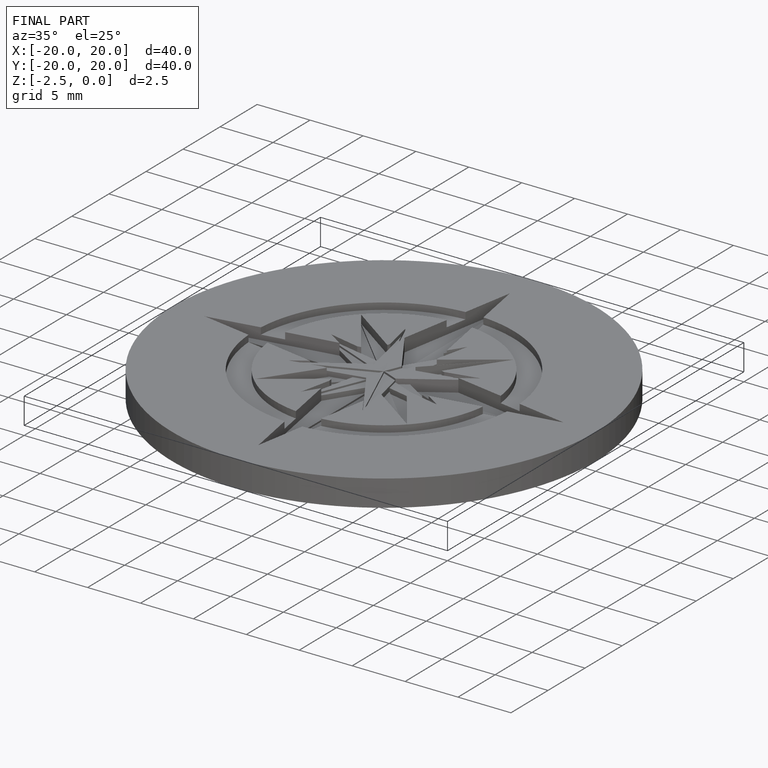
[diagram: finished part — iso view with bounding-box wireframe]
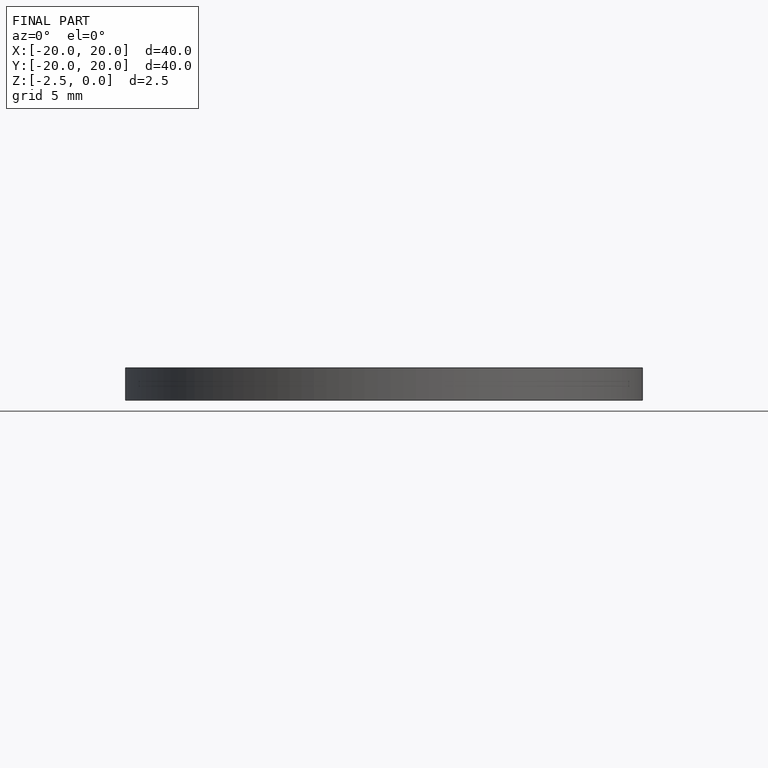
[diagram: finished part — front view with bounding-box wireframe]
